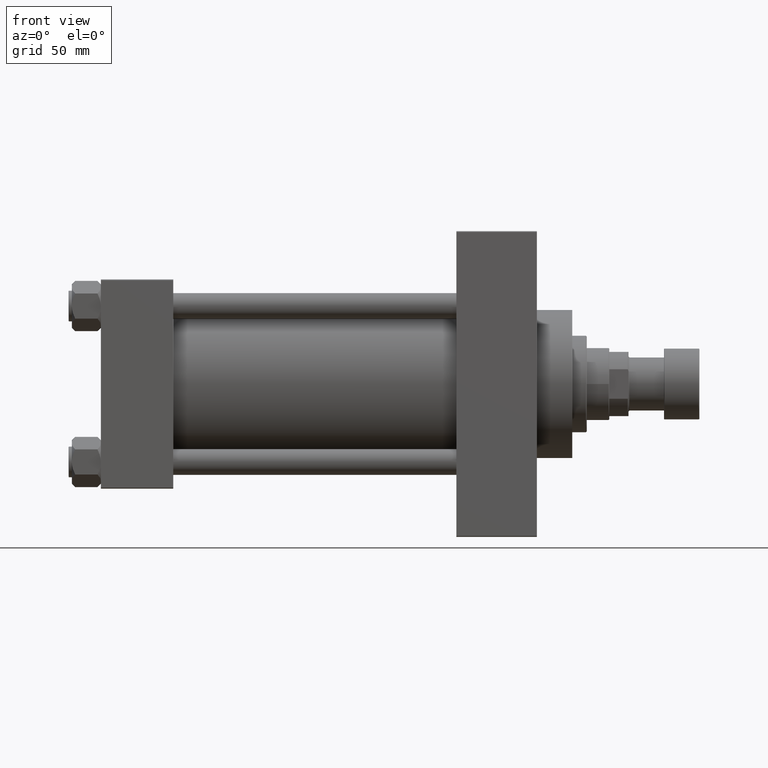
[diagram: clean part render]
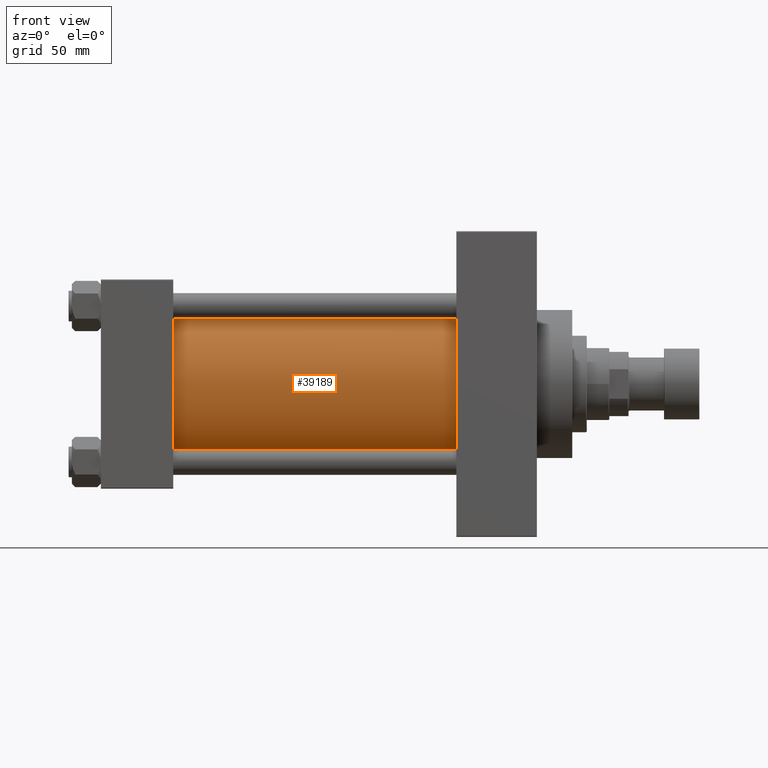
[diagram: same view with one face highlighted and labeled with its STEP entity id]
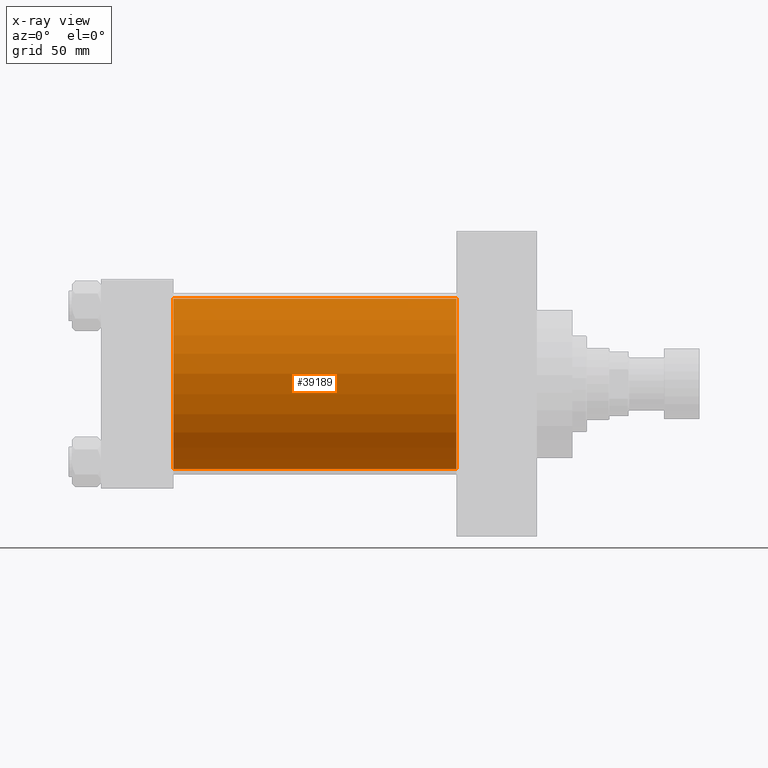
[diagram: x-ray of the same camera — body ghosted, the highlighted face saturated]
A machine part, front view. The second image highlights one B-rep face of the part: STEP entity #39189.
The next image is the same camera in x-ray: the body ghosted, the highlighted face saturated — about 1% of this face is hidden behind the body in this view.
In plain terms, the highlighted cylindrical surface (partial cylindrical patch) has radius 53 mm, axis along (-1, -0, -0).
Its self-contained STEP definition (entity closure, byte-faithful):
#1011 = CARTESIAN_POINT ( 'NONE',  ( 220.9999999999999716, 3.888542821515762466E-15, -53.00000000000000711 ) ) ;
#1501 = EDGE_CURVE ( 'NONE', #3263, #43955, #40595, .T. ) ;
#2655 = DIRECTION ( 'NONE',  ( 0.000000000000000000, 0.000000000000000000, 1.000000000000000000 ) ) ;
#3263 = VERTEX_POINT ( 'NONE', #7651 ) ;
#5782 = FACE_OUTER_BOUND ( 'NONE', #8661, .T. ) ;
#6511 = CYLINDRICAL_SURFACE ( 'NONE', #36030, 53.00000000000000711 ) ;
#7651 = CARTESIAN_POINT ( 'NONE',  ( 220.9999999999999716, -2.602085213965210642E-15, 53.00000000000000711 ) ) ;
#8158 = CARTESIAN_POINT ( 'NONE',  ( 44.99999999999998579, 3.888542821515762466E-15, -53.00000000000000711 ) ) ;
#8661 = EDGE_LOOP ( 'NONE', ( #15125, #43302, #14106, #32760 ) ) ;
#11529 = EDGE_CURVE ( 'NONE', #22961, #26564, #42342, .T. ) ;
#13328 = DIRECTION ( 'NONE',  ( -1.000000000000000000, -0.000000000000000000, -0.000000000000000000 ) ) ;
#14106 = ORIENTED_EDGE ( 'NONE', *, *, #1501, .T. ) ;
#14823 = DIRECTION ( 'NONE',  ( -1.000000000000000000, -0.000000000000000000, -0.000000000000000000 ) ) ;
#14967 = AXIS2_PLACEMENT_3D ( 'NONE', #39380, #39134, #2655 ) ;
#15125 = ORIENTED_EDGE ( 'NONE', *, *, #11529, .F. ) ;
#18056 = CIRCLE ( 'NONE', #14967, 53.00000000000000711 ) ;
#19147 = VECTOR ( 'NONE', #14823, 1000.000000000000000 ) ;
#20615 = CARTESIAN_POINT ( 'NONE',  ( 44.99999999999998579, -2.602085213965210642E-15, 53.00000000000000711 ) ) ;
#22126 = CARTESIAN_POINT ( 'NONE',  ( 220.9999999999999716, -2.602085213965210642E-15, 53.00000000000000711 ) ) ;
#22742 = AXIS2_PLACEMENT_3D ( 'NONE', #43819, #25571, #24848 ) ;
#22961 = VERTEX_POINT ( 'NONE', #37829 ) ;
#24848 = DIRECTION ( 'NONE',  ( 0.000000000000000000, 0.000000000000000000, -1.000000000000000000 ) ) ;
#25030 = CIRCLE ( 'NONE', #22742, 53.00000000000000711 ) ;
#25571 = DIRECTION ( 'NONE',  ( 1.000000000000000000, 0.000000000000000000, 0.000000000000000000 ) ) ;
#26564 = VERTEX_POINT ( 'NONE', #8158 ) ;
#32760 = ORIENTED_EDGE ( 'NONE', *, *, #35594, .T. ) ;
#35442 = EDGE_CURVE ( 'NONE', #3263, #22961, #25030, .T. ) ;
#35594 = EDGE_CURVE ( 'NONE', #43955, #26564, #18056, .T. ) ;
#35700 = CARTESIAN_POINT ( 'NONE',  ( 220.9999999999999716, -2.602085213965210642E-15, 0.000000000000000000 ) ) ;
#36030 = AXIS2_PLACEMENT_3D ( 'NONE', #35700, #13328, #43495 ) ;
#37829 = CARTESIAN_POINT ( 'NONE',  ( 220.9999999999999716, 3.888542821515762466E-15, -53.00000000000000711 ) ) ;
#38933 = DIRECTION ( 'NONE',  ( -1.000000000000000000, -0.000000000000000000, -0.000000000000000000 ) ) ;
#39134 = DIRECTION ( 'NONE',  ( 1.000000000000000000, -0.000000000000000000, 0.000000000000000000 ) ) ;
#39189 = ADVANCED_FACE ( 'NONE', ( #5782 ), #6511, .T. ) ;
#39380 = CARTESIAN_POINT ( 'NONE',  ( 44.99999999999998579, -2.602085213965210642E-15, 0.000000000000000000 ) ) ;
#40595 = LINE ( 'NONE', #22126, #19147 ) ;
#42342 = LINE ( 'NONE', #1011, #44588 ) ;
#43302 = ORIENTED_EDGE ( 'NONE', *, *, #35442, .F. ) ;
#43495 = DIRECTION ( 'NONE',  ( 0.000000000000000000, 0.000000000000000000, 1.000000000000000000 ) ) ;
#43819 = CARTESIAN_POINT ( 'NONE',  ( 220.9999999999999716, -2.602085213965210642E-15, 0.000000000000000000 ) ) ;
#43955 = VERTEX_POINT ( 'NONE', #20615 ) ;
#44588 = VECTOR ( 'NONE', #38933, 1000.000000000000000 ) ;